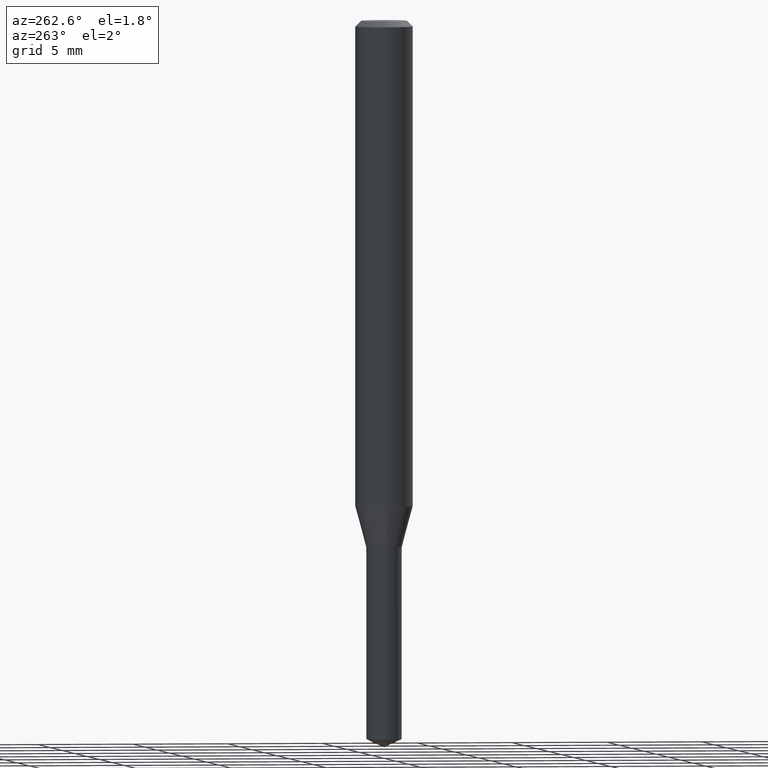
[diagram: clean part render]
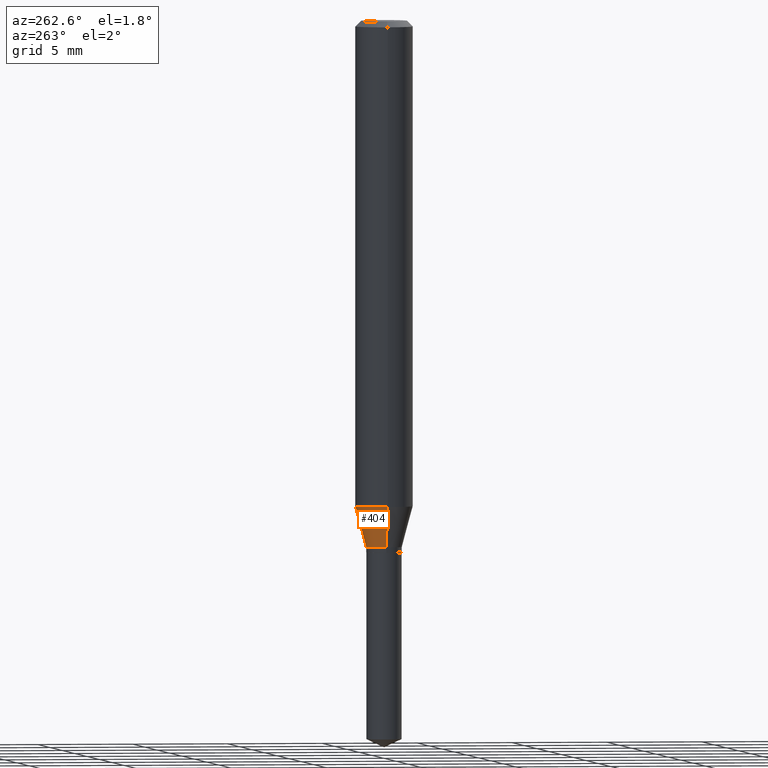
[diagram: same view with one face highlighted and labeled with its STEP entity id]
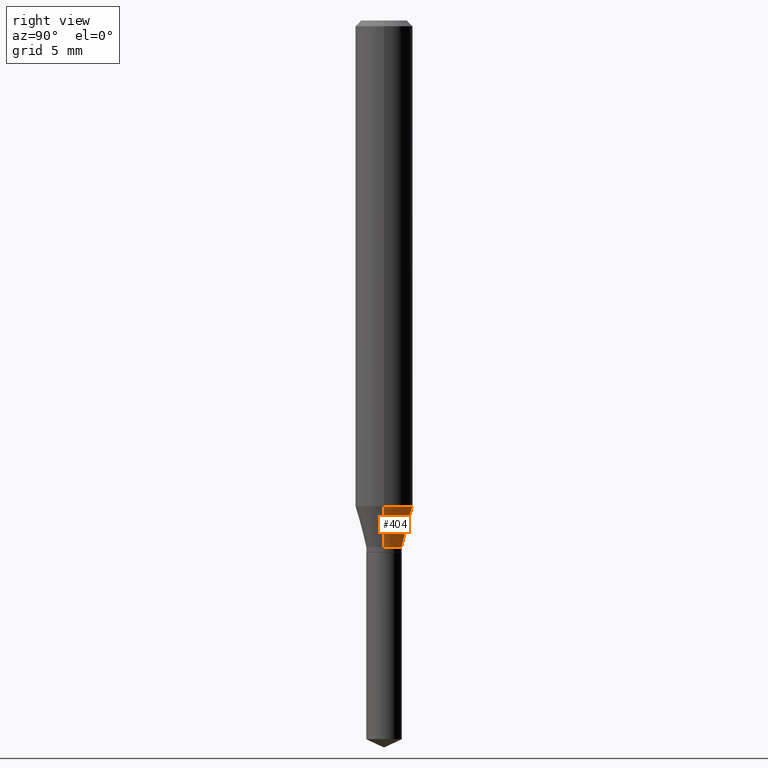
[diagram: same view with one face highlighted and labeled with its STEP entity id]
A machine part, auxiliary view. The second image highlights one B-rep face of the part: STEP entity #404.
A second angle (right view) of the same face is appended — the face is thin or edge-on in the first view.
In plain terms, the highlighted conical surface has half-angle 15 deg.
Its self-contained STEP definition (entity closure, byte-faithful):
#22 = VERTEX_POINT ( 'NONE', #318 ) ;
#34 = FACE_OUTER_BOUND ( 'NONE', #44, .T. ) ;
#43 = CARTESIAN_POINT ( 'NONE',  ( 0.03659999999999995202, -4.038596464639864917E-15, -1.083499999999999908 ) ) ;
#44 = EDGE_LOOP ( 'NONE', ( #213, #167, #266, #263 ) ) ;
#49 = CONICAL_SURFACE ( 'NONE', #260, 0.03659999999999995202, 0.2617993877991501295 ) ;
#63 = AXIS2_PLACEMENT_3D ( 'NONE', #139, #250, #112 ) ;
#70 = CARTESIAN_POINT ( 'NONE',  ( -0.03659999999999995202, -3.522961389348351691E-15, -1.083499999999999908 ) ) ;
#99 = VECTOR ( 'NONE', #166, 39.37007874015747433 ) ;
#105 = VERTEX_POINT ( 'NONE', #223 ) ;
#112 = DIRECTION ( 'NONE',  ( 1.000000000000000000, -6.982962677686267499E-15, 0.000000000000000000 ) ) ;
#137 = VERTEX_POINT ( 'NONE', #212 ) ;
#139 = CARTESIAN_POINT ( 'NONE',  ( 2.649665451501595207E-29, -3.783020030636548117E-15, -1.083499999999999908 ) ) ;
#148 = DIRECTION ( 'NONE',  ( 1.000000000000000000, -6.982962677686267499E-15, 0.000000000000000000 ) ) ;
#166 = DIRECTION ( 'NONE',  ( 0.2588190451025214611, 1.565188264969621573E-15, 0.9659258262890682012 ) ) ;
#167 = ORIENTED_EDGE ( 'NONE', *, *, #349, .T. ) ;
#168 = CIRCLE ( 'NONE', #63, 0.03659999999999995202 ) ;
#182 = CARTESIAN_POINT ( 'NONE',  ( 2.649665451501595207E-29, -3.783020030636548117E-15, -1.083499999999999908 ) ) ;
#195 = VERTEX_POINT ( 'NONE', #43 ) ;
#201 = CARTESIAN_POINT ( 'NONE',  ( 0.03659999999999995202, -4.038596464639864917E-15, -1.083499999999999908 ) ) ;
#212 = CARTESIAN_POINT ( 'NONE',  ( -0.05905000000000013016, -3.070912385077291412E-15, -0.9997154593700782188 ) ) ;
#213 = ORIENTED_EDGE ( 'NONE', *, *, #342, .T. ) ;
#220 = DIRECTION ( 'NONE',  ( -0.2588190451025214611, 5.211531920934551042E-15, 0.9659258262890682012 ) ) ;
#223 = CARTESIAN_POINT ( 'NONE',  ( -0.03659999999999995896, -3.541291666377277873E-15, -1.083499999999999908 ) ) ;
#250 = DIRECTION ( 'NONE',  ( -2.445468806185136597E-29, 3.491481338843145583E-15, 1.000000000000000000 ) ) ;
#260 = AXIS2_PLACEMENT_3D ( 'NONE', #182, #334, #148 ) ;
#263 = ORIENTED_EDGE ( 'NONE', *, *, #275, .F. ) ;
#266 = ORIENTED_EDGE ( 'NONE', *, *, #365, .F. ) ;
#275 = EDGE_CURVE ( 'NONE', #195, #22, #460, .T. ) ;
#292 = DIRECTION ( 'NONE',  ( 1.000000000000000000, -6.982962677686265133E-15, 0.000000000000000000 ) ) ;
#308 = AXIS2_PLACEMENT_3D ( 'NONE', #445, #368, #292 ) ;
#318 = CARTESIAN_POINT ( 'NONE',  ( 0.05905000000000013016, -3.902831816661005825E-15, -0.9997154593700782188 ) ) ;
#334 = DIRECTION ( 'NONE',  ( -2.445468806185136597E-29, 3.491481338843145583E-15, 1.000000000000000000 ) ) ;
#342 = EDGE_CURVE ( 'NONE', #195, #105, #168, .T. ) ;
#349 = EDGE_CURVE ( 'NONE', #105, #137, #409, .T. ) ;
#365 = EDGE_CURVE ( 'NONE', #22, #137, #465, .T. ) ;
#368 = DIRECTION ( 'NONE',  ( -2.445468806185136597E-29, 3.491481338843145583E-15, 1.000000000000000000 ) ) ;
#404 = ADVANCED_FACE ( 'NONE', ( #34 ), #49, .T. ) ;
#408 = VECTOR ( 'NONE', #220, 39.37007874015747433 ) ;
#409 = LINE ( 'NONE', #70, #408 ) ;
#445 = CARTESIAN_POINT ( 'NONE',  ( 2.444772970950570480E-29, -3.490487870543630905E-15, -0.9997154593700782188 ) ) ;
#460 = LINE ( 'NONE', #201, #99 ) ;
#465 = CIRCLE ( 'NONE', #308, 0.05905000000000013016 ) ;